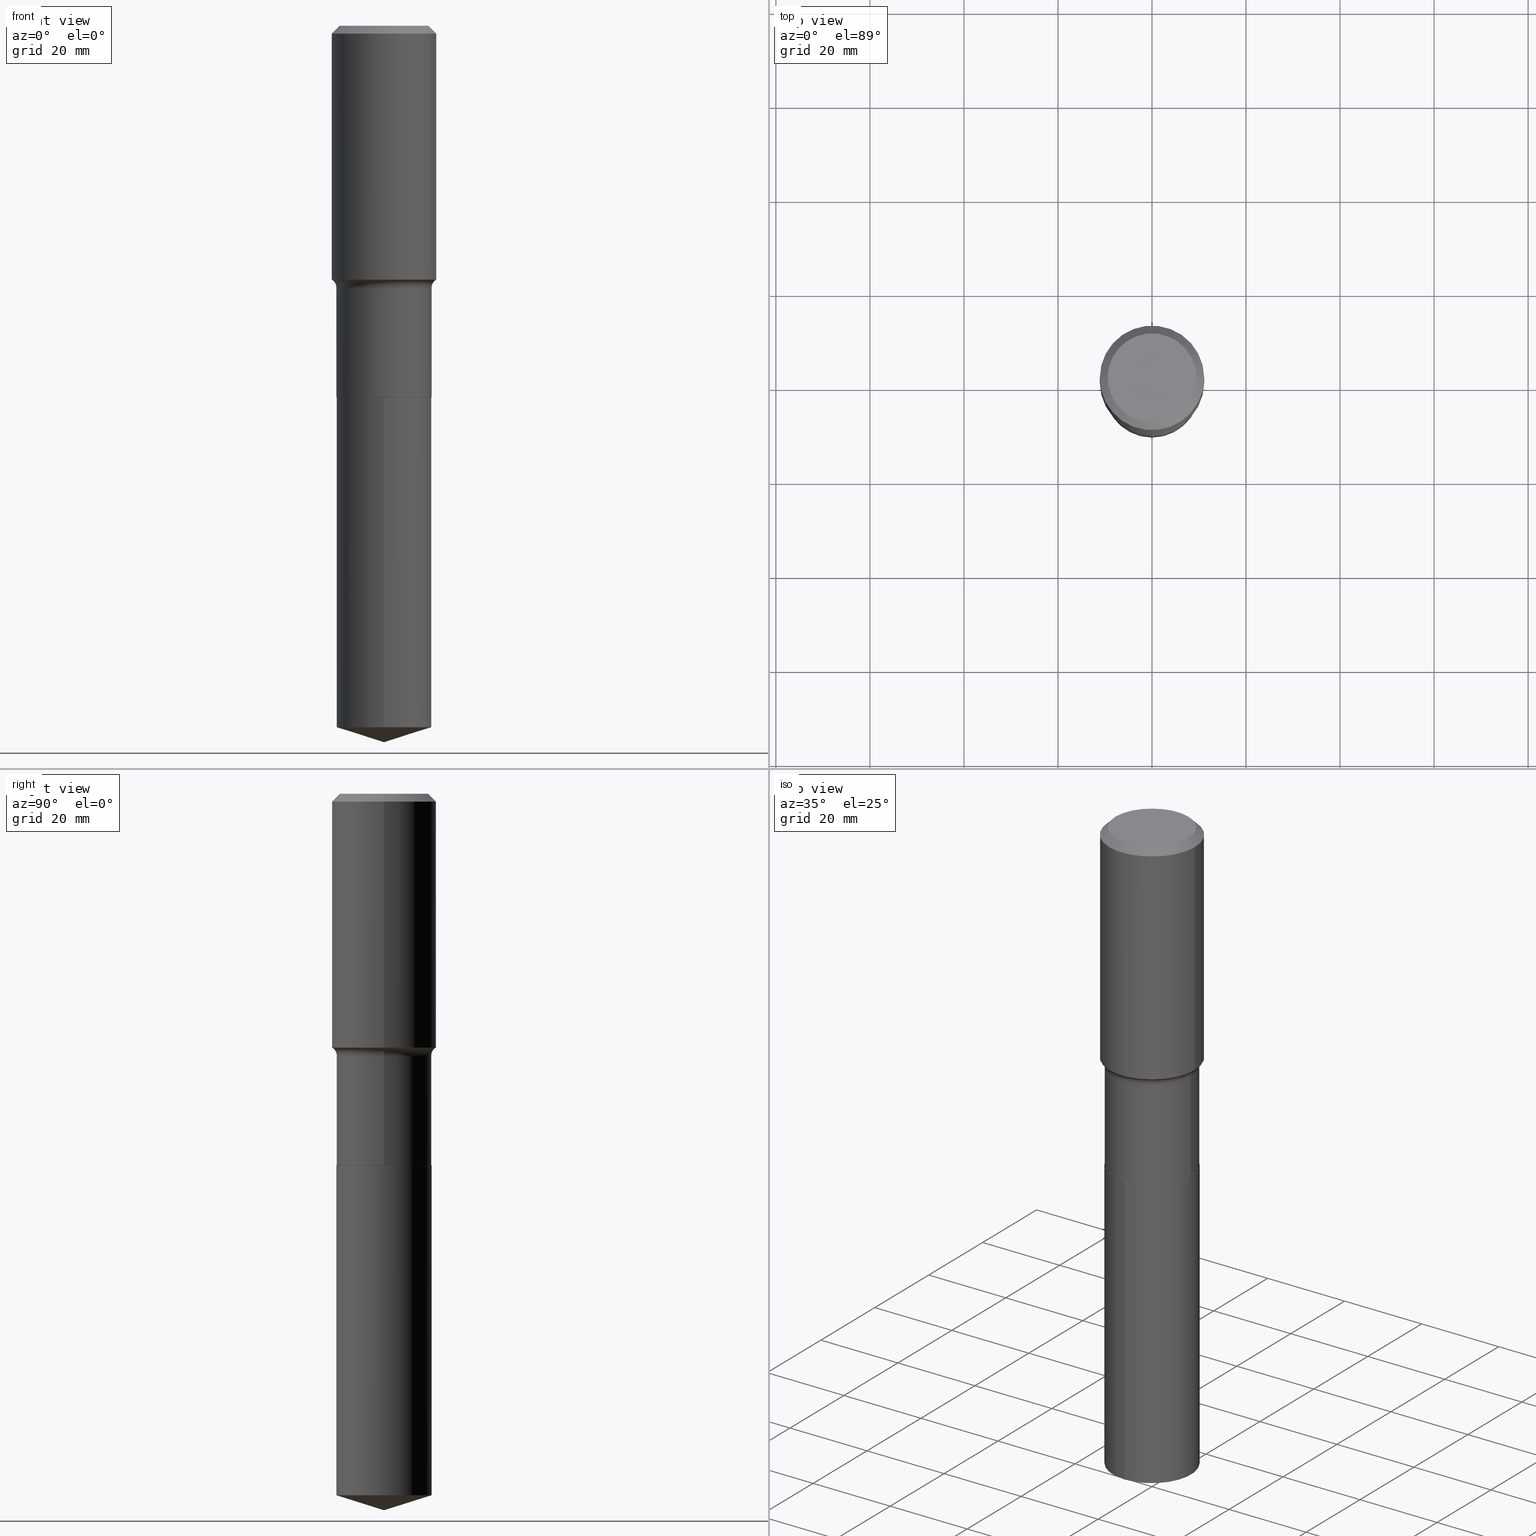
[diagram: canonical four-view strip — front | top / right | iso, engineering-drawing reading convention]
A machine part, canonical four-view strip (front | top / right | iso — engineering-drawing reading convention). The complete STEP part file that produces these views, byte-faithful:
ISO-10303-21;
HEADER;
FILE_DESCRIPTION (( 'STEP AP203' ),
    '1' );
FILE_NAME ('51792.STEP',
    '2024-04-19T13:28:52',
    ( '' ),
    ( '' ),
    'SwSTEP 2.0',
    'SolidWorks 2023',
    '' );
FILE_SCHEMA (( 'CONFIG_CONTROL_DESIGN' ));
ENDSEC;

DATA;
#1 = TOROIDAL_SURFACE ( 'NONE', #310, 0.4764499999999998181, 0.07799999999999999989 ) ;
#2 = CARTESIAN_POINT ( 'NONE',  ( 0.4375000000000001110, -3.055046171487742475E-15, 2.133327339410722330E-29 ) ) ;
#3 = EDGE_CURVE ( 'NONE', #409, #291, #72, .T. ) ;
#4 = CIRCLE ( 'NONE', #132, 0.07800000000000002764 ) ;
#5 = EDGE_CURVE ( 'NONE', #436, #105, #319, .T. ) ;
#6 = AXIS2_PLACEMENT_3D ( 'NONE', #71, #32, #452 ) ;
#7 = APPLICATION_CONTEXT ( 'configuration controlled 3d designs of mechanical parts and assemblies' ) ;
#8 = EDGE_LOOP ( 'NONE', ( #290, #220, #171, #181 ) ) ;
#9 = EDGE_CURVE ( 'NONE', #136, #129, #104, .T. ) ;
#10 = CARTESIAN_POINT ( 'NONE',  ( 1.604838904059006962E-30, -2.291284628615829930E-16, -0.06562500000000044686 ) ) ;
#11 = AXIS2_PLACEMENT_3D ( 'NONE', #135, #392, #440 ) ;
#12 = ORIENTED_EDGE ( 'NONE', *, *, #74, .T. ) ;
#13 = ORIENTED_EDGE ( 'NONE', *, *, #231, .F. ) ;
#14 = DIRECTION ( 'NONE',  ( -6.659769872151631300E-15, -0.9537169507482265995, 0.3007057995042737852 ) ) ;
#15 = ORIENTED_EDGE ( 'NONE', *, *, #188, .F. ) ;
#16 = SECURITY_CLASSIFICATION_LEVEL ( 'unclassified' ) ;
#17 = LINE ( 'NONE', #174, #468 ) ;
#18 = ORIENTED_EDGE ( 'NONE', *, *, #395, .F. ) ;
#19 = CLOSED_SHELL ( 'NONE', ( #383, #277, #211, #361, #57, #442, #465, #241, #54, #165, #385, #434 ) ) ;
#20 = COORDINATED_UNIVERSAL_TIME_OFFSET ( 5, 0, .BEHIND. ) ;
#21 = CARTESIAN_POINT ( 'NONE',  ( 0.4764499999999998181, -1.098385114386664135E-14, -2.193000000000000504 ) ) ;
#22 = PRODUCT_DEFINITION ( 'UNKNOWN', '', #85, #202 ) ;
#23 = FACE_OUTER_BOUND ( 'NONE', #130, .T. ) ;
#24 = CIRCLE ( 'NONE', #309, 0.3984499999999998598 ) ;
#25 = ORIENTED_EDGE ( 'NONE', *, *, #197, .F. ) ;
#26 = APPROVAL_DATE_TIME ( #255, #345 ) ;
#27 = DIRECTION ( 'NONE',  ( 1.000000000000000000, -6.982962677686266711E-15, 4.883557194083112901E-29 ) ) ;
#28 = DIRECTION ( 'NONE',  ( 1.000000000000000000, -6.982962677686265922E-15, 4.876176775795935793E-29 ) ) ;
#29 = ORIENTED_EDGE ( 'NONE', *, *, #296, .T. ) ;
#30 = APPROVAL_STATUS ( 'not_yet_approved' ) ;
#31 = LINE ( 'NONE', #420, #141 ) ;
#32 = DIRECTION ( 'NONE',  ( 0.000000000000000000, 0.000000000000000000, 1.000000000000000000 ) ) ;
#33 = EDGE_CURVE ( 'NONE', #143, #281, #340, .T. ) ;
#34 = CARTESIAN_POINT ( 'NONE',  ( -0.4375000000000003331, -4.312243903027238069E-15, -2.125421175653907646 ) ) ;
#35 = CARTESIAN_POINT ( 'NONE',  ( 1.436559583916348787E-28, -2.051023724085114055E-14, -5.874369197571170709 ) ) ;
#36 = MECHANICAL_CONTEXT ( 'NONE', #7, 'mechanical' ) ;
#37 = CONICAL_SURFACE ( 'NONE', #402, 0.4375000000000000000, 0.7853981633974447263 ) ;
#38 = AXIS2_PLACEMENT_3D ( 'NONE', #103, #184, #405 ) ;
#39 = CARTESIAN_POINT ( 'NONE',  ( 7.603940705952065203E-29, -1.085641207499887869E-14, -3.109400000000000386 ) ) ;
#40 = CARTESIAN_POINT ( 'NONE',  ( -8.160560813710107733E-28, 1.165108331761446839E-13, 33.37007874015748143 ) ) ;
#41 = CARTESIAN_POINT ( 'NONE',  ( 1.604838904059006962E-30, -2.291284628615829930E-16, -0.06562500000000044686 ) ) ;
#42 = PRODUCT ( '51792', '51792', '', ( #36 ) ) ;
#43 = APPROVAL ( #473, 'UNSPECIFIED' ) ;
#44 = AXIS2_PLACEMENT_3D ( 'NONE', #41, #190, #413 ) ;
#45 = CARTESIAN_POINT ( 'NONE',  ( 0.3984499999999998598, -1.043918005500711173E-14, -2.193000000000000504 ) ) ;
#46 = PERSON ( 'UNSPECIFIED', 'UNSPECIFIED', 'UNSPECIFIED', ('UNSPECIFIED'), ('UNSPECIFIED'), ('UNSPECIFIED') ) ;
#47 = ORIENTED_EDGE ( 'NONE', *, *, #207, .F. ) ;
#48 = PRODUCT_DEFINITION_SHAPE ( 'NONE', 'NONE',  #22 ) ;
#49 = DIRECTION ( 'NONE',  ( -2.445468806185136597E-29, 3.491481338843145583E-15, 1.000000000000000000 ) ) ;
#50 = CONICAL_SURFACE ( 'NONE', #390, 124.8659371009150760, 1.265363707695891682 ) ;
#51 = APPROVAL_PERSON_ORGANIZATION ( #334, #43, #68 ) ;
#52 = ORIENTED_EDGE ( 'NONE', *, *, #349, .T. ) ;
#53 = CYLINDRICAL_SURFACE ( 'NONE', #183, 0.4375000000000001110 ) ;
#54 = ADVANCED_FACE ( 'NONE', ( #23 ), #37, .T. ) ;
#55 = CARTESIAN_POINT ( 'NONE',  ( 7.602717971548972402E-29, -1.085466633432945640E-14, -3.108900000000000219 ) ) ;
#56 = ORIENTED_EDGE ( 'NONE', *, *, #328, .T. ) ;
#57 = ADVANCED_FACE ( 'NONE', ( #78 ), #308, .T. ) ;
#58 = ORIENTED_EDGE ( 'NONE', *, *, #424, .F. ) ;
#59 = DIRECTION ( 'NONE',  ( -2.445468806185136597E-29, 3.491481338843145583E-15, 1.000000000000000000 ) ) ;
#60 = VECTOR ( 'NONE', #338, 39.37007874015748143 ) ;
#61 = VECTOR ( 'NONE', #242, 39.37007874015748143 ) ;
#62 = EDGE_LOOP ( 'NONE', ( #25, #285, #476, #260 ) ) ;
#63 =( NAMED_UNIT ( * ) SI_UNIT ( $, .STERADIAN. ) SOLID_ANGLE_UNIT ( ) );
#64 = ADVANCED_FACE ( 'NONE', ( #160 ), #438, .T. ) ;
#65 = CARTESIAN_POINT ( 'NONE',  ( 5.197651185066970693E-29, -7.420868371977678749E-15, -2.125421175653907646 ) ) ;
#66 = COORDINATED_UNIVERSAL_TIME_OFFSET ( 5, 0, .BEHIND. ) ;
#67 = EDGE_LOOP ( 'NONE', ( #282, #298, #482, #187 ) ) ;
#68 = APPROVAL_ROLE ( '' ) ;
#69 = DIRECTION ( 'NONE',  ( 1.000000000000000000, -6.982962677686268288E-15, 0.000000000000000000 ) ) ;
#70 = EDGE_LOOP ( 'NONE', ( #253, #97 ) ) ;
#71 = CARTESIAN_POINT ( 'NONE',  ( 0.000000000000000000, 0.000000000000000000, 0.000000000000000000 ) ) ;
#72 = CIRCLE ( 'NONE', #243, 0.4375000000000000000 ) ;
#73 = CARTESIAN_POINT ( 'NONE',  ( -0.3979500000000000814, -8.026158030867447825E-15, -3.109400000000000386 ) ) ;
#74 = EDGE_CURVE ( 'NONE', #129, #136, #346, .T. ) ;
#75 = AXIS2_PLACEMENT_3D ( 'NONE', #123, #382, #279 ) ;
#76 = DATE_AND_TIME ( #261, #347 ) ;
#77 = CARTESIAN_POINT ( 'NONE',  ( -2.782361478924016448E-15, -0.3984500000000109066, -3.109399999999998609 ) ) ;
#78 = FACE_OUTER_BOUND ( 'NONE', #444, .T. ) ;
#79 = CC_DESIGN_PERSON_AND_ORGANIZATION_ASSIGNMENT ( #195, #118, ( #42 ) ) ;
#80 = CARTESIAN_POINT ( 'NONE',  ( -0.4375000000000000000, -7.163739484691917690E-16, -0.06562500000000044686 ) ) ;
#81 = DIRECTION ( 'NONE',  ( 2.438088387897960049E-29, -3.491481338843145188E-15, -1.000000000000000000 ) ) ;
#82 = DIRECTION ( 'NONE',  ( -2.445468806185136597E-29, 3.491481338843145583E-15, 1.000000000000000000 ) ) ;
#83 = CARTESIAN_POINT ( 'NONE',  ( 0.000000000000000000, 0.000000000000000000, 0.000000000000000000 ) ) ;
#84 = CIRCLE ( 'NONE', #487, 0.07800000000000002764 ) ;
#85 = PRODUCT_DEFINITION_FORMATION_WITH_SPECIFIED_SOURCE ( 'ANY', '', #42, .NOT_KNOWN. ) ;
#86 = PLANE ( 'NONE',  #429 ) ;
#87 = CARTESIAN_POINT ( 'NONE',  ( 7.603940705952065203E-29, -1.085641207499887869E-14, -3.109400000000000386 ) ) ;
#88 = CARTESIAN_POINT ( 'NONE',  ( -0.3984500000000001374, -6.424584924570118002E-15, -3.108900000000000219 ) ) ;
#89 = ORIENTED_EDGE ( 'NONE', *, *, #33, .T. ) ;
#90 = AXIS2_PLACEMENT_3D ( 'NONE', #83, #152, #28 ) ;
#91 = CARTESIAN_POINT ( 'NONE',  ( 5.362913091964004880E-29, -7.656818576083019153E-15, -2.193000000000000504 ) ) ;
#92 = CYLINDRICAL_SURFACE ( 'NONE', #461, 0.3984499999999999709 ) ;
#93 = AXIS2_PLACEMENT_3D ( 'NONE', #262, #108, #411 ) ;
#94 = CARTESIAN_POINT ( 'NONE',  ( 7.602717971548972402E-29, -1.085466633432945640E-14, -3.108900000000000219 ) ) ;
#95 =( GEOMETRIC_REPRESENTATION_CONTEXT ( 3 ) GLOBAL_UNCERTAINTY_ASSIGNED_CONTEXT ( ( #317 ) ) GLOBAL_UNIT_ASSIGNED_CONTEXT ( ( #401, #445, #63 ) ) REPRESENTATION_CONTEXT ( 'NONE', 'WORKASPACE' ) );
#96 = ORIENTED_EDGE ( 'NONE', *, *, #328, .F. ) ;
#97 = ORIENTED_EDGE ( 'NONE', *, *, #486, .T. ) ;
#98 = FACE_OUTER_BOUND ( 'NONE', #288, .T. ) ;
#99 = PERSON_AND_ORGANIZATION_ROLE ( 'classification_officer' ) ;
#100 = CARTESIAN_POINT ( 'NONE',  ( 2.831157530636262556E-15, 0.3984499999999795428, -5.874369197571171597 ) ) ;
#101 = ORIENTED_EDGE ( 'NONE', *, *, #9, .F. ) ;
#102 = LINE ( 'NONE', #140, #384 ) ;
#103 = CARTESIAN_POINT ( 'NONE',  ( 7.603940705952065203E-29, -1.085641207499887869E-14, -3.109400000000000386 ) ) ;
#104 = CIRCLE ( 'NONE', #38, 0.3984500000000000264 ) ;
#105 = VERTEX_POINT ( 'NONE', #414 ) ;
#106 = CC_DESIGN_PERSON_AND_ORGANIZATION_ASSIGNMENT ( #280, #147, ( #22 ) ) ;
#107 = ORIENTED_EDGE ( 'NONE', *, *, #451, .F. ) ;
#108 = DIRECTION ( 'NONE',  ( -2.445468806185136597E-29, 3.491481338843145583E-15, 1.000000000000000000 ) ) ;
#109 = EDGE_LOOP ( 'NONE', ( #464, #177, #354, #431 ) ) ;
#110 = CARTESIAN_POINT ( 'NONE',  ( 5.362913091964004880E-29, -7.656818576083019153E-15, -2.193000000000000504 ) ) ;
#111 = CARTESIAN_POINT ( 'NONE',  ( 2.831157530636262556E-15, 0.3984499999999891462, -3.109400000000002162 ) ) ;
#112 = CC_DESIGN_APPROVAL ( #43, ( #142 ) ) ;
#113 = LINE ( 'NONE', #229, #162 ) ;
#114 = PLANE ( 'NONE',  #194 ) ;
#115 = DIRECTION ( 'NONE',  ( -2.445468806185136597E-29, 3.491481338843145583E-15, 1.000000000000000000 ) ) ;
#116 = LINE ( 'NONE', #77, #254 ) ;
#117 = DIRECTION ( 'NONE',  ( -1.000000000000000000, 7.105427357601001859E-15, 0.000000000000000000 ) ) ;
#118 = PERSON_AND_ORGANIZATION_ROLE ( 'design_owner' ) ;
#119 = VECTOR ( 'NONE', #266, 39.37007874015748143 ) ;
#120 = DIRECTION ( 'NONE',  ( -6.982962677686265922E-15, -1.000000000000000000, 3.500519750498704038E-15 ) ) ;
#121 = CARTESIAN_POINT ( 'NONE',  ( 0.000000000000000000, 0.000000000000000000, 0.000000000000000000 ) ) ;
#122 = AXIS2_PLACEMENT_3D ( 'NONE', #155, #297, #27 ) ;
#123 = CARTESIAN_POINT ( 'NONE',  ( 7.603940705952065203E-29, -1.085641207499887869E-14, -3.109400000000000386 ) ) ;
#124 = AXIS2_PLACEMENT_3D ( 'NONE', #170, #426, #250 ) ;
#125 = APPROVAL_DATE_TIME ( #245, #303 ) ;
#126 = CARTESIAN_POINT ( 'NONE',  ( 0.3984499999999999709, -2.782361478924092573E-15, 1.942912636315890449E-29 ) ) ;
#127 = VERTEX_POINT ( 'NONE', #158 ) ;
#128 = EDGE_CURVE ( 'NONE', #363, #295, #201, .T. ) ;
#129 = VERTEX_POINT ( 'NONE', #271 ) ;
#130 = EDGE_LOOP ( 'NONE', ( #47, #435, #52, #407 ) ) ;
#131 = CC_DESIGN_DATE_AND_TIME_ASSIGNMENT ( #178, #396, ( #142 ) ) ;
#132 = AXIS2_PLACEMENT_3D ( 'NONE', #422, #381, #117 ) ;
#133 = LOCAL_TIME ( 9, 28, 52.00000000000000000, #478 ) ;
#134 = ORIENTED_EDGE ( 'NONE', *, *, #389, .F. ) ;
#135 = CARTESIAN_POINT ( 'NONE',  ( 7.603940705952065203E-29, -1.085641207499887869E-14, -3.109400000000000386 ) ) ;
#136 = VERTEX_POINT ( 'NONE', #111 ) ;
#137 = FACE_OUTER_BOUND ( 'NONE', #62, .T. ) ;
#138 = ADVANCED_FACE ( 'NONE', ( #417 ), #339, .T. ) ;
#139 = VERTEX_POINT ( 'NONE', #455 ) ;
#140 = CARTESIAN_POINT ( 'NONE',  ( -0.4375000000000001110, 3.108624468950439102E-15, -2.152034101986521805E-29 ) ) ;
#141 = VECTOR ( 'NONE', #341, 39.37007874015748143 ) ;
#142 = SECURITY_CLASSIFICATION ( '', '', #16 ) ;
#143 = VERTEX_POINT ( 'NONE', #264 ) ;
#144 = ORIENTED_EDGE ( 'NONE', *, *, #265, .T. ) ;
#145 = CARTESIAN_POINT ( 'NONE',  ( -2.782361478923949789E-15, -0.3984500000000205100, -5.874369197571169821 ) ) ;
#146 = ORIENTED_EDGE ( 'NONE', *, *, #74, .F. ) ;
#147 = PERSON_AND_ORGANIZATION_ROLE ( 'creator' ) ;
#148 = ORIENTED_EDGE ( 'NONE', *, *, #238, .F. ) ;
#149 = LINE ( 'NONE', #192, #278 ) ;
#150 = CLOSED_SHELL ( 'NONE', ( #489, #64, #391, #138, #415 ) ) ;
#151 = CARTESIAN_POINT ( 'NONE',  ( 7.603940705952065203E-29, -1.085641207499887869E-14, -3.109400000000000386 ) ) ;
#152 = DIRECTION ( 'NONE',  ( -2.445468806185136597E-29, 3.491481338843145583E-15, 1.000000000000000000 ) ) ;
#153 = CIRCLE ( 'NONE', #377, 0.3984499999999998598 ) ;
#154 = APPLICATION_PROTOCOL_DEFINITION ( 'international standard', 'config_control_design', 1994, #459 ) ;
#155 = CARTESIAN_POINT ( 'NONE',  ( 5.362913091964004880E-29, -7.656818576083019153E-15, -2.193000000000000504 ) ) ;
#156 = PERSON_AND_ORGANIZATION ( #46, #216 ) ;
#157 = FACE_OUTER_BOUND ( 'NONE', #67, .T. ) ;
#158 = CARTESIAN_POINT ( 'NONE',  ( -0.3984499999999998598, -6.424584924570119580E-15, -2.193000000000000504 ) ) ;
#159 = EDGE_CURVE ( 'NONE', #281, #127, #4, .T. ) ;
#160 = FACE_OUTER_BOUND ( 'NONE', #373, .T. ) ;
#161 = VECTOR ( 'NONE', #331, 39.37007874015748143 ) ;
#162 = VECTOR ( 'NONE', #423, 39.37007874015748854 ) ;
#163 = APPROVAL_PERSON_ORGANIZATION ( #156, #303, #418 ) ;
#164 = DIRECTION ( 'NONE',  ( 1.000000000000000000, -6.982962677686265922E-15, 4.876176775795935793E-29 ) ) ;
#165 = ADVANCED_FACE ( 'NONE', ( #236 ), #304, .F. ) ;
#166 = CARTESIAN_POINT ( 'NONE',  ( -1.591006383764329579E-46, 2.271535455632766759E-32, 6.505936120470313374E-18 ) ) ;
#167 = LINE ( 'NONE', #126, #234 ) ;
#168 = EDGE_LOOP ( 'NONE', ( #12, #351 ) ) ;
#169 = CONICAL_SURFACE ( 'NONE', #44, 0.4375000000000000000, 0.7853981633974447263 ) ;
#170 = CARTESIAN_POINT ( 'NONE',  ( 7.603940705952065203E-29, -1.085641207499887869E-14, -3.109400000000000386 ) ) ;
#171 = ORIENTED_EDGE ( 'NONE', *, *, #247, .T. ) ;
#172 = CALENDAR_DATE ( 2024, 19, 4 ) ;
#173 = CC_DESIGN_PERSON_AND_ORGANIZATION_ASSIGNMENT ( #301, #219, ( #85 ) ) ;
#174 = CARTESIAN_POINT ( 'NONE',  ( 0.4375000000000000000, -3.230596336886627854E-15, -0.06562500000000044686 ) ) ;
#175 = CIRCLE ( 'NONE', #239, 0.3984500000000000264 ) ;
#176 = LINE ( 'NONE', #397, #263 ) ;
#177 = ORIENTED_EDGE ( 'NONE', *, *, #424, .T. ) ;
#178 = DATE_AND_TIME ( #182, #287 ) ;
#179 = EDGE_LOOP ( 'NONE', ( #213, #439, #370, #148 ) ) ;
#180 = DIRECTION ( 'NONE',  ( -2.445468806185136597E-29, 3.491481338843145583E-15, 1.000000000000000000 ) ) ;
#181 = ORIENTED_EDGE ( 'NONE', *, *, #395, .T. ) ;
#182 = CALENDAR_DATE ( 2024, 19, 4 ) ;
#183 = AXIS2_PLACEMENT_3D ( 'NONE', #364, #404, #248 ) ;
#184 = DIRECTION ( 'NONE',  ( -2.445472137321116635E-29, 3.491476568466825474E-15, 1.000000000000000000 ) ) ;
#185 = PERSON_AND_ORGANIZATION ( #46, #216 ) ;
#186 = DIRECTION ( 'NONE',  ( -6.982962677686265133E-15, -1.000000000000000000, 2.742475084617154406E-15 ) ) ;
#187 = ORIENTED_EDGE ( 'NONE', *, *, #5, .F. ) ;
#188 = EDGE_CURVE ( 'NONE', #249, #400, #292, .T. ) ;
#189 = CALENDAR_DATE ( 2024, 19, 4 ) ;
#190 = DIRECTION ( 'NONE',  ( 2.445468806185136597E-29, -3.491481338843145583E-15, -1.000000000000000000 ) ) ;
#191 = CALENDAR_DATE ( 2024, 19, 4 ) ;
#192 = CARTESIAN_POINT ( 'NONE',  ( -0.3984499999999999709, 2.831157530636118984E-15, -1.959949686712066901E-29 ) ) ;
#193 = EDGE_CURVE ( 'NONE', #458, #105, #233, .T. ) ;
#194 = AXIS2_PLACEMENT_3D ( 'NONE', #151, #443, #335 ) ;
#195 = PERSON_AND_ORGANIZATION ( #46, #216 ) ;
#196 = DIRECTION ( 'NONE',  ( -2.445468806185136597E-29, 3.491481338843145583E-15, 1.000000000000000000 ) ) ;
#197 = EDGE_CURVE ( 'NONE', #281, #409, #102, .T. ) ;
#198 = DIRECTION ( 'NONE',  ( -2.445472137321116635E-29, 3.491476568466825474E-15, 1.000000000000000000 ) ) ;
#199 = CARTESIAN_POINT ( 'NONE',  ( 0.3979500000000000814, -1.363528207258412826E-14, -3.109400000000000386 ) ) ;
#200 = ORIENTED_EDGE ( 'NONE', *, *, #389, .T. ) ;
#201 = CIRCLE ( 'NONE', #425, 0.3718749999999999556 ) ;
#202 = DESIGN_CONTEXT ( 'detailed design', #459, 'design' ) ;
#203 = FACE_OUTER_BOUND ( 'NONE', #8, .T. ) ;
#204 = EDGE_LOOP ( 'NONE', ( #332, #244, #15 ) ) ;
#205 = DIRECTION ( 'NONE',  ( -2.445468806185136877E-29, 3.491481338843145188E-15, 1.000000000000000000 ) ) ;
#206 = CYLINDRICAL_SURFACE ( 'NONE', #124, 0.3984500000000000264 ) ;
#207 = EDGE_CURVE ( 'NONE', #295, #291, #17, .T. ) ;
#208 = ORIENTED_EDGE ( 'NONE', *, *, #276, .F. ) ;
#209 = ADVANCED_BREP_SHAPE_REPRESENTATION ( '51792', ( #230, #221, #6 ), #95 ) ;
#210 = DIRECTION ( 'NONE',  ( 2.445468806185136597E-29, -3.491481338843145583E-15, -1.000000000000000000 ) ) ;
#211 = ADVANCED_FACE ( 'NONE', ( #471 ), #53, .T. ) ;
#212 = DIRECTION ( 'NONE',  ( -2.445468806185136597E-29, 3.491481338843145583E-15, 1.000000000000000000 ) ) ;
#213 = ORIENTED_EDGE ( 'NONE', *, *, #296, .F. ) ;
#214 = AXIS2_PLACEMENT_3D ( 'NONE', #94, #325, #69 ) ;
#215 = DIRECTION ( 'NONE',  ( 1.000000000000000000, -6.982962677686268288E-15, 0.000000000000000000 ) ) ;
#216 = ORGANIZATION ( 'UNSPECIFIED', 'UNSPECIFIED', '' ) ;
#217 = DIRECTION ( 'NONE',  ( 1.000000000000000000, -6.982962677686266711E-15, 0.000000000000000000 ) ) ;
#218 = ORIENTED_EDGE ( 'NONE', *, *, #352, .T. ) ;
#219 = PERSON_AND_ORGANIZATION_ROLE ( 'design_supplier' ) ;
#220 = ORIENTED_EDGE ( 'NONE', *, *, #33, .F. ) ;
#221 = MANIFOLD_SOLID_BREP ( 'Body-Move/Copy2[2]', #19 ) ;
#222 = PERSON_AND_ORGANIZATION ( #46, #216 ) ;
#223 = CARTESIAN_POINT ( 'NONE',  ( 0.3718749999999999556, -2.890922014903958629E-15, 6.505936120489500258E-18 ) ) ;
#224 = CC_DESIGN_PERSON_AND_ORGANIZATION_ASSIGNMENT ( #185, #99, ( #142 ) ) ;
#225 = CIRCLE ( 'NONE', #430, 0.4375000000000000000 ) ;
#226 = EDGE_LOOP ( 'NONE', ( #13, #58 ) ) ;
#227 = FACE_OUTER_BOUND ( 'NONE', #252, .T. ) ;
#228 = DIRECTION ( 'NONE',  ( -6.982962677686265133E-15, -1.000000000000000000, 4.113712626925731609E-15 ) ) ;
#229 = CARTESIAN_POINT ( 'NONE',  ( 1.467283300557865982E-28, -2.094885941080095600E-14, -6.000000000000000888 ) ) ;
#230 = MANIFOLD_SOLID_BREP ( 'Body-Move/Copy2[1]', #150 ) ;
#231 = EDGE_CURVE ( 'NONE', #436, #427, #447, .T. ) ;
#232 = DIRECTION ( 'NONE',  ( -2.445472137321116635E-29, 3.491476568466825474E-15, 1.000000000000000000 ) ) ;
#233 = CIRCLE ( 'NONE', #214, 0.3984500000000000819 ) ;
#234 = VECTOR ( 'NONE', #205, 39.37007874015748143 ) ;
#235 = DIRECTION ( 'NONE',  ( 2.445472137321116355E-29, -3.491476568466825474E-15, -1.000000000000000000 ) ) ;
#236 = FACE_OUTER_BOUND ( 'NONE', #70, .T. ) ;
#237 = DATE_AND_TIME ( #191, #133 ) ;
#238 = EDGE_CURVE ( 'NONE', #127, #441, #153, .T. ) ;
#239 = AXIS2_PLACEMENT_3D ( 'NONE', #378, #374, #186 ) ;
#240 = DIRECTION ( 'NONE',  ( 1.000000000000000000, -6.982962677686266711E-15, 4.883557194083112901E-29 ) ) ;
#241 = ADVANCED_FACE ( 'NONE', ( #137 ), #289, .T. ) ;
#242 = DIRECTION ( 'NONE',  ( -2.445468806185136877E-29, 3.491481338843145188E-15, 1.000000000000000000 ) ) ;
#243 = AXIS2_PLACEMENT_3D ( 'NONE', #10, #259, #217 ) ;
#244 = ORIENTED_EDGE ( 'NONE', *, *, #276, .T. ) ;
#245 = DATE_AND_TIME ( #172, #293 ) ;
#246 = AXIS2_PLACEMENT_3D ( 'NONE', #55, #59, #215 ) ;
#247 = EDGE_CURVE ( 'NONE', #143, #441, #84, .T. ) ;
#248 = DIRECTION ( 'NONE',  ( 1.000000000000000000, -6.982962677686266711E-15, 4.876176775795935793E-29 ) ) ;
#249 = VERTEX_POINT ( 'NONE', #100 ) ;
#250 = DIRECTION ( 'NONE',  ( -6.982962677686265133E-15, -1.000000000000000000, 4.113712626925731609E-15 ) ) ;
#251 = DIRECTION ( 'NONE',  ( -2.445472137321116635E-29, 3.491476568466825474E-15, 1.000000000000000000 ) ) ;
#252 = EDGE_LOOP ( 'NONE', ( #394, #348, #469, #472 ) ) ;
#253 = ORIENTED_EDGE ( 'NONE', *, *, #128, .T. ) ;
#254 = VECTOR ( 'NONE', #479, 39.37007874015748143 ) ;
#255 = DATE_AND_TIME ( #189, #321 ) ;
#256 = CC_DESIGN_APPROVAL ( #345, ( #85 ) ) ;
#257 = CC_DESIGN_PERSON_AND_ORGANIZATION_ASSIGNMENT ( #337, #403, ( #85 ) ) ;
#258 = CARTESIAN_POINT ( 'NONE',  ( 0.4375000000000000000, -3.284174634349324876E-15, -0.06562500000000044686 ) ) ;
#259 = DIRECTION ( 'NONE',  ( -2.445468806185136597E-29, 3.491481338843145583E-15, 1.000000000000000000 ) ) ;
#260 = ORIENTED_EDGE ( 'NONE', *, *, #3, .F. ) ;
#261 = CALENDAR_DATE ( 2024, 19, 4 ) ;
#262 = CARTESIAN_POINT ( 'NONE',  ( 7.603940705952065203E-29, -1.085641207499887869E-14, -3.109400000000000386 ) ) ;
#263 = VECTOR ( 'NONE', #14, 39.37007874015748854 ) ;
#264 = CARTESIAN_POINT ( 'NONE',  ( 0.4375000000000003331, -1.047591454346542517E-14, -2.125421175653907646 ) ) ;
#265 = EDGE_CURVE ( 'NONE', #105, #458, #460, .T. ) ;
#266 = DIRECTION ( 'NONE',  ( -2.445472137321116635E-29, 3.491476568466825474E-15, 1.000000000000000000 ) ) ;
#267 = FACE_OUTER_BOUND ( 'NONE', #462, .T. ) ;
#268 = DIRECTION ( 'NONE',  ( 1.000000000000000000, -6.982962677686267499E-15, 4.876184966057910179E-29 ) ) ;
#269 = APPROVAL_STATUS ( 'not_yet_approved' ) ;
#270 = CARTESIAN_POINT ( 'NONE',  ( -0.3979500000000000814, -8.028807258041559815E-15, -3.109400000000000386 ) ) ;
#271 = CARTESIAN_POINT ( 'NONE',  ( -2.782361478924016448E-15, -0.3984500000000109066, -3.109399999999998609 ) ) ;
#272 = CIRCLE ( 'NONE', #457, 0.4375000000000002776 ) ;
#273 = APPROVAL_PERSON_ORGANIZATION ( #222, #345, #367 ) ;
#274 = APPROVAL_DATE_TIME ( #237, #43 ) ;
#275 = FACE_OUTER_BOUND ( 'NONE', #109, .T. ) ;
#276 = EDGE_CURVE ( 'NONE', #139, #400, #176, .T. ) ;
#277 = ADVANCED_FACE ( 'NONE', ( #267 ), #169, .T. ) ;
#278 = VECTOR ( 'NONE', #453, 39.37007874015748143 ) ;
#279 = DIRECTION ( 'NONE',  ( 1.000000000000000000, -6.982962677686264344E-15, 0.000000000000000000 ) ) ;
#280 = PERSON_AND_ORGANIZATION ( #46, #216 ) ;
#281 = VERTEX_POINT ( 'NONE', #34 ) ;
#282 = ORIENTED_EDGE ( 'NONE', *, *, #231, .T. ) ;
#283 = DIRECTION ( 'NONE',  ( 1.000000000000000000, -6.982962677686255667E-15, 0.000000000000000000 ) ) ;
#284 = ORIENTED_EDGE ( 'NONE', *, *, #352, .F. ) ;
#285 = ORIENTED_EDGE ( 'NONE', *, *, #393, .T. ) ;
#286 = AXIS2_PLACEMENT_3D ( 'NONE', #87, #336, #228 ) ;
#287 = LOCAL_TIME ( 9, 28, 52.00000000000000000, #475 ) ;
#288 = EDGE_LOOP ( 'NONE', ( #56, #200, #146, #284 ) ) ;
#289 = CYLINDRICAL_SURFACE ( 'NONE', #342, 0.4375000000000001110 ) ;
#290 = ORIENTED_EDGE ( 'NONE', *, *, #159, .F. ) ;
#291 = VERTEX_POINT ( 'NONE', #258 ) ;
#292 = CIRCLE ( 'NONE', #410, 0.3984500000000000264 ) ;
#293 = LOCAL_TIME ( 9, 28, 52.00000000000000000, #456 ) ;
#294 = DIRECTION ( 'NONE',  ( 0.7071067811865450192, -7.319954787623246579E-15, -0.7071067811865500152 ) ) ;
#295 = VERTEX_POINT ( 'NONE', #223 ) ;
#296 = EDGE_CURVE ( 'NONE', #458, #127, #149, .T. ) ;
#297 = DIRECTION ( 'NONE',  ( -2.445468806185136597E-29, 3.491481338843145583E-15, 1.000000000000000000 ) ) ;
#298 = ORIENTED_EDGE ( 'NONE', *, *, #333, .T. ) ;
#299 = DIRECTION ( 'NONE',  ( 1.000000000000000000, -6.982962677686264344E-15, 0.000000000000000000 ) ) ;
#300 = CARTESIAN_POINT ( 'NONE',  ( -1.591006383764329579E-46, 2.271535455632766759E-32, 6.505936120470313374E-18 ) ) ;
#301 = PERSON_AND_ORGANIZATION ( #46, #216 ) ;
#302 = FACE_OUTER_BOUND ( 'NONE', #204, .T. ) ;
#303 = APPROVAL ( #269, 'UNSPECIFIED' ) ;
#304 = PLANE ( 'NONE',  #360 ) ;
#305 = DIRECTION ( 'NONE',  ( 1.000000000000000000, -6.982962677686265133E-15, 0.000000000000000000 ) ) ;
#306 = DIRECTION ( 'NONE',  ( -6.982962677686265133E-15, -1.000000000000000000, 4.113712626925731609E-15 ) ) ;
#307 = LINE ( 'NONE', #2, #61 ) ;
#308 = CYLINDRICAL_SURFACE ( 'NONE', #90, 0.3984499999999999709 ) ;
#309 = AXIS2_PLACEMENT_3D ( 'NONE', #110, #490, #305 ) ;
#310 = AXIS2_PLACEMENT_3D ( 'NONE', #91, #350, #240 ) ;
#311 = CC_DESIGN_DATE_AND_TIME_ASSIGNMENT ( #76, #362, ( #22 ) ) ;
#312 = DIRECTION ( 'NONE',  ( 1.000000000000000000, -6.982962677686267499E-15, 4.876184966057910179E-29 ) ) ;
#313 = CARTESIAN_POINT ( 'NONE',  ( 1.604838904059006962E-30, -2.291284628615829930E-16, -0.06562500000000044686 ) ) ;
#314 = AXIS2_PLACEMENT_3D ( 'NONE', #39, #82, #299 ) ;
#315 = EDGE_LOOP ( 'NONE', ( #89, #466, #324, #398 ) ) ;
#316 = CIRCLE ( 'NONE', #379, 0.3718749999999999556 ) ;
#317 = UNCERTAINTY_MEASURE_WITH_UNIT (LENGTH_MEASURE( 1.000000000000000082E-05 ), #401, 'distance_accuracy_value', 'NONE');
#318 = DIRECTION ( 'NONE',  ( -2.445468806185136597E-29, 3.491481338843145583E-15, 1.000000000000000000 ) ) ;
#319 = LINE ( 'NONE', #326, #161 ) ;
#320 = AXIS2_PLACEMENT_3D ( 'NONE', #40, #491, #120 ) ;
#321 = LOCAL_TIME ( 9, 28, 52.00000000000000000, #20 ) ;
#322 = PRODUCT_RELATED_PRODUCT_CATEGORY ( 'detail', '', ( #42 ) ) ;
#323 = DIRECTION ( 'NONE',  ( -6.982962677686265133E-15, -1.000000000000000000, 2.742475084617154406E-15 ) ) ;
#324 = ORIENTED_EDGE ( 'NONE', *, *, #470, .F. ) ;
#325 = DIRECTION ( 'NONE',  ( -2.445468806185136597E-29, 3.491481338843145583E-15, 1.000000000000000000 ) ) ;
#326 = CARTESIAN_POINT ( 'NONE',  ( 0.3979500000000000814, -1.363528207258412826E-14, -3.109400000000000386 ) ) ;
#327 = ORIENTED_EDGE ( 'NONE', *, *, #428, .T. ) ;
#328 = EDGE_CURVE ( 'NONE', #400, #249, #175, .T. ) ;
#329 = AXIS2_PLACEMENT_3D ( 'NONE', #343, #198, #306 ) ;
#330 = DIRECTION ( 'NONE',  ( -2.445468806185136877E-29, 3.491481338843145188E-15, 1.000000000000000000 ) ) ;
#331 = DIRECTION ( 'NONE',  ( 0.7071067811864509833, -2.468850131081245741E-15, 0.7071067811866440511 ) ) ;
#332 = ORIENTED_EDGE ( 'NONE', *, *, #428, .F. ) ;
#333 = EDGE_CURVE ( 'NONE', #427, #458, #483, .T. ) ;
#334 = PERSON_AND_ORGANIZATION ( #46, #216 ) ;
#335 = DIRECTION ( 'NONE',  ( 1.000000000000000000, -6.982962677686265922E-15, 4.876176775795935793E-29 ) ) ;
#336 = DIRECTION ( 'NONE',  ( -2.445472137321116635E-29, 3.491476568466825474E-15, 1.000000000000000000 ) ) ;
#337 = PERSON_AND_ORGANIZATION ( #46, #216 ) ;
#338 = DIRECTION ( 'NONE',  ( -0.7071067811864509833, 7.493145998870005484E-15, 0.7071067811866440511 ) ) ;
#339 = CYLINDRICAL_SURFACE ( 'NONE', #329, 0.3984500000000000264 ) ;
#340 = CIRCLE ( 'NONE', #449, 0.4375000000000002776 ) ;
#341 = DIRECTION ( 'NONE',  ( -0.7071067811865450192, 2.468850131082230634E-15, -0.7071067811865500152 ) ) ;
#342 = AXIS2_PLACEMENT_3D ( 'NONE', #437, #318, #357 ) ;
#343 = CARTESIAN_POINT ( 'NONE',  ( 7.603940705952065203E-29, -1.085641207499887869E-14, -3.109400000000000386 ) ) ;
#344 = CARTESIAN_POINT ( 'NONE',  ( 2.831157530636195109E-15, 0.3984499999999891462, -3.109400000000002162 ) ) ;
#345 = APPROVAL ( #30, 'UNSPECIFIED' ) ;
#346 = CIRCLE ( 'NONE', #286, 0.3984500000000000264 ) ;
#347 = LOCAL_TIME ( 9, 28, 52.00000000000000000, #66 ) ;
#348 = ORIENTED_EDGE ( 'NONE', *, *, #159, .T. ) ;
#349 = EDGE_CURVE ( 'NONE', #363, #409, #31, .T. ) ;
#350 = DIRECTION ( 'NONE',  ( -2.445468806185136597E-29, 3.491481338843145583E-15, 1.000000000000000000 ) ) ;
#351 = ORIENTED_EDGE ( 'NONE', *, *, #9, .T. ) ;
#352 = EDGE_CURVE ( 'NONE', #400, #129, #116, .T. ) ;
#353 = DIRECTION ( 'NONE',  ( -2.445468806185136597E-29, 3.491481338843145583E-15, 1.000000000000000000 ) ) ;
#354 = ORIENTED_EDGE ( 'NONE', *, *, #5, .T. ) ;
#355 = DIRECTION ( 'NONE',  ( 1.000000000000000000, -6.982962677686266711E-15, 0.000000000000000000 ) ) ;
#356 = CC_DESIGN_APPROVAL ( #303, ( #22 ) ) ;
#357 = DIRECTION ( 'NONE',  ( 1.000000000000000000, -6.982962677686266711E-15, 4.876176775795935793E-29 ) ) ;
#358 = DIRECTION ( 'NONE',  ( -1.000000000000000000, 6.982962677686266711E-15, 0.000000000000000000 ) ) ;
#359 = ORIENTED_EDGE ( 'NONE', *, *, #470, .T. ) ;
#360 = AXIS2_PLACEMENT_3D ( 'NONE', #450, #81, #376 ) ;
#361 = ADVANCED_FACE ( 'NONE', ( #227 ), #419, .F. ) ;
#362 = DATE_TIME_ROLE ( 'creation_date' ) ;
#363 = VERTEX_POINT ( 'NONE', #485 ) ;
#364 = CARTESIAN_POINT ( 'NONE',  ( 0.000000000000000000, 0.000000000000000000, 0.000000000000000000 ) ) ;
#365 = EDGE_LOOP ( 'NONE', ( #134, #406, #218, #101 ) ) ;
#366 = LENGTH_MEASURE_WITH_UNIT ( LENGTH_MEASURE( 0.02539999999999999897 ), #492 );
#367 = APPROVAL_ROLE ( '' ) ;
#368 = DIRECTION ( 'NONE',  ( 1.000000000000000000, -6.982962677686265133E-15, 0.000000000000000000 ) ) ;
#369 = DIRECTION ( 'NONE',  ( 1.000000000000000000, -6.982962677686267499E-15, 0.000000000000000000 ) ) ;
#370 = ORIENTED_EDGE ( 'NONE', *, *, #451, .T. ) ;
#371 = CIRCLE ( 'NONE', #93, 0.3979500000000000814 ) ;
#372 = DIRECTION ( 'NONE',  ( 1.000000000000000000, -6.982962677686267499E-15, 0.000000000000000000 ) ) ;
#373 = EDGE_LOOP ( 'NONE', ( #208, #327, #96 ) ) ;
#374 = DIRECTION ( 'NONE',  ( -2.445472137321116635E-29, 3.491476568466825474E-15, 1.000000000000000000 ) ) ;
#375 = DIRECTION ( 'NONE',  ( -6.982962677686265922E-15, -1.000000000000000000, 3.500519750498704038E-15 ) ) ;
#376 = DIRECTION ( 'NONE',  ( -1.000000000000000000, 6.982962677686265922E-15, -4.876176775795935793E-29 ) ) ;
#377 = AXIS2_PLACEMENT_3D ( 'NONE', #433, #212, #368 ) ;
#378 = CARTESIAN_POINT ( 'NONE',  ( 1.436559583916348787E-28, -2.051023724085114055E-14, -5.874369197571170709 ) ) ;
#379 = AXIS2_PLACEMENT_3D ( 'NONE', #166, #49, #312 ) ;
#380 = DIRECTION ( 'NONE',  ( 6.982962677686265922E-15, 1.000000000000000000, -3.491476568466825474E-15 ) ) ;
#381 = DIRECTION ( 'NONE',  ( 7.105427357601001859E-15, 1.000000000000000000, -3.491481338843145583E-15 ) ) ;
#382 = DIRECTION ( 'NONE',  ( -2.445468806185136597E-29, 3.491481338843145583E-15, 1.000000000000000000 ) ) ;
#383 = ADVANCED_FACE ( 'NONE', ( #157 ), #399, .T. ) ;
#384 = VECTOR ( 'NONE', #330, 39.37007874015748143 ) ;
#385 = ADVANCED_FACE ( 'NONE', ( #446 ), #114, .F. ) ;
#386 = ORIENTED_EDGE ( 'NONE', *, *, #207, .T. ) ;
#387 = DIRECTION ( 'NONE',  ( -2.445468806185136597E-29, 3.491481338843145583E-15, 1.000000000000000000 ) ) ;
#388 = ORIENTED_EDGE ( 'NONE', *, *, #486, .F. ) ;
#389 = EDGE_CURVE ( 'NONE', #249, #136, #416, .T. ) ;
#390 = AXIS2_PLACEMENT_3D ( 'NONE', #448, #232, #375 ) ;
#391 = ADVANCED_FACE ( 'NONE', ( #302 ), #50, .T. ) ;
#392 = DIRECTION ( 'NONE',  ( -2.445468806185136597E-29, 3.491481338843145583E-15, 1.000000000000000000 ) ) ;
#393 = EDGE_CURVE ( 'NONE', #281, #143, #272, .T. ) ;
#394 = ORIENTED_EDGE ( 'NONE', *, *, #393, .F. ) ;
#395 = EDGE_CURVE ( 'NONE', #441, #127, #24, .T. ) ;
#396 = DATE_TIME_ROLE ( 'classification_date' ) ;
#397 = CARTESIAN_POINT ( 'NONE',  ( 1.467281210825826756E-28, -2.094888907681721413E-14, -6.000000000000000888 ) ) ;
#398 = ORIENTED_EDGE ( 'NONE', *, *, #467, .F. ) ;
#399 = CONICAL_SURFACE ( 'NONE', #314, 0.3979500000000000814, 0.7853981633973118326 ) ;
#400 = VERTEX_POINT ( 'NONE', #145 ) ;
#401 =( CONVERSION_BASED_UNIT ( 'INCH', #366 ) LENGTH_UNIT ( ) NAMED_UNIT ( #480 ) );
#402 = AXIS2_PLACEMENT_3D ( 'NONE', #481, #210, #358 ) ;
#403 = PERSON_AND_ORGANIZATION_ROLE ( 'creator' ) ;
#404 = DIRECTION ( 'NONE',  ( -2.445468806185136597E-29, 3.491481338843145583E-15, 1.000000000000000000 ) ) ;
#405 = DIRECTION ( 'NONE',  ( -6.982962677686265133E-15, -1.000000000000000000, 4.113712626925731609E-15 ) ) ;
#406 = ORIENTED_EDGE ( 'NONE', *, *, #188, .T. ) ;
#407 = ORIENTED_EDGE ( 'NONE', *, *, #3, .T. ) ;
#408 = CARTESIAN_POINT ( 'NONE',  ( 7.603940705952065203E-29, -1.085641207499887869E-14, -3.109400000000000386 ) ) ;
#409 = VERTEX_POINT ( 'NONE', #80 ) ;
#410 = AXIS2_PLACEMENT_3D ( 'NONE', #35, #251, #323 ) ;
#411 = DIRECTION ( 'NONE',  ( 1.000000000000000000, -6.982962677686264344E-15, 0.000000000000000000 ) ) ;
#412 = SHAPE_DEFINITION_REPRESENTATION ( #48, #209 ) ;
#413 = DIRECTION ( 'NONE',  ( -1.000000000000000000, 6.982962677686266711E-15, 0.000000000000000000 ) ) ;
#414 = CARTESIAN_POINT ( 'NONE',  ( 0.3984500000000000819, -1.363702781325355055E-14, -3.108900000000000219 ) ) ;
#415 = ADVANCED_FACE ( 'NONE', ( #454 ), #86, .F. ) ;
#416 = LINE ( 'NONE', #344, #119 ) ;
#417 = FACE_OUTER_BOUND ( 'NONE', #365, .T. ) ;
#418 = APPROVAL_ROLE ( '' ) ;
#419 = TOROIDAL_SURFACE ( 'NONE', #122, 0.4764499999999998181, 0.07799999999999999989 ) ;
#420 = CARTESIAN_POINT ( 'NONE',  ( -0.4375000000000000000, 2.825917708626158101E-15, -0.06562500000000044686 ) ) ;
#421 = CC_DESIGN_SECURITY_CLASSIFICATION ( #142, ( #85 ) ) ;
#422 = CARTESIAN_POINT ( 'NONE',  ( -0.4764499999999998181, -4.271437711554023899E-15, -2.193000000000000504 ) ) ;
#423 = DIRECTION ( 'NONE',  ( 6.776566513254256560E-15, 0.9537169507482287090, 0.3007057995042671794 ) ) ;
#424 = EDGE_CURVE ( 'NONE', #427, #436, #371, .T. ) ;
#425 = AXIS2_PLACEMENT_3D ( 'NONE', #300, #115, #268 ) ;
#426 = DIRECTION ( 'NONE',  ( -2.445472137321116635E-29, 3.491476568466825474E-15, 1.000000000000000000 ) ) ;
#427 = VERTEX_POINT ( 'NONE', #73 ) ;
#428 = EDGE_CURVE ( 'NONE', #139, #249, #113, .T. ) ;
#429 = AXIS2_PLACEMENT_3D ( 'NONE', #408, #235, #380 ) ;
#430 = AXIS2_PLACEMENT_3D ( 'NONE', #313, #387, #355 ) ;
#431 = ORIENTED_EDGE ( 'NONE', *, *, #193, .F. ) ;
#432 = DIRECTION ( 'NONE',  ( -6.982962677686266711E-15, -1.000000000000000000, 3.491481338843145583E-15 ) ) ;
#433 = CARTESIAN_POINT ( 'NONE',  ( 5.362913091964004880E-29, -7.656818576083019153E-15, -2.193000000000000504 ) ) ;
#434 = ADVANCED_FACE ( 'NONE', ( #275 ), #477, .T. ) ;
#435 = ORIENTED_EDGE ( 'NONE', *, *, #128, .F. ) ;
#436 = VERTEX_POINT ( 'NONE', #199 ) ;
#437 = CARTESIAN_POINT ( 'NONE',  ( 0.000000000000000000, 0.000000000000000000, 0.000000000000000000 ) ) ;
#438 = CONICAL_SURFACE ( 'NONE', #320, 124.8659371009150760, 1.265363707695891682 ) ;
#439 = ORIENTED_EDGE ( 'NONE', *, *, #193, .T. ) ;
#440 = DIRECTION ( 'NONE',  ( 1.000000000000000000, -6.982962677686264344E-15, 0.000000000000000000 ) ) ;
#441 = VERTEX_POINT ( 'NONE', #45 ) ;
#442 = ADVANCED_FACE ( 'NONE', ( #463 ), #92, .T. ) ;
#443 = DIRECTION ( 'NONE',  ( -2.438088387897960049E-29, 3.491481338843145188E-15, 1.000000000000000000 ) ) ;
#444 = EDGE_LOOP ( 'NONE', ( #144, #29, #18, #107 ) ) ;
#445 =( NAMED_UNIT ( * ) PLANE_ANGLE_UNIT ( ) SI_UNIT ( $, .RADIAN. ) );
#446 = FACE_OUTER_BOUND ( 'NONE', #226, .T. ) ;
#447 = CIRCLE ( 'NONE', #11, 0.3979500000000000814 ) ;
#448 = CARTESIAN_POINT ( 'NONE',  ( -8.160560813710107733E-28, 1.165108331761446839E-13, 33.37007874015748143 ) ) ;
#449 = AXIS2_PLACEMENT_3D ( 'NONE', #65, #180, #369 ) ;
#450 = CARTESIAN_POINT ( 'NONE',  ( -7.955031918821647895E-47, 1.135767727816383379E-32, 3.252968060235156687E-18 ) ) ;
#451 = EDGE_CURVE ( 'NONE', #105, #441, #167, .T. ) ;
#452 = DIRECTION ( 'NONE',  ( 1.000000000000000000, 0.000000000000000000, 0.000000000000000000 ) ) ;
#453 = DIRECTION ( 'NONE',  ( -2.445468806185136877E-29, 3.491481338843145188E-15, 1.000000000000000000 ) ) ;
#454 = FACE_OUTER_BOUND ( 'NONE', #168, .T. ) ;
#455 = CARTESIAN_POINT ( 'NONE',  ( 1.467283282392670093E-28, -2.094885941080095600E-14, -6.000000000000000888 ) ) ;
#456 = COORDINATED_UNIVERSAL_TIME_OFFSET ( 5, 0, .BEHIND. ) ;
#457 = AXIS2_PLACEMENT_3D ( 'NONE', #488, #196, #372 ) ;
#458 = VERTEX_POINT ( 'NONE', #88 ) ;
#459 = APPLICATION_CONTEXT ( 'configuration controlled 3d designs of mechanical parts and assemblies' ) ;
#460 = CIRCLE ( 'NONE', #246, 0.3984500000000000819 ) ;
#461 = AXIS2_PLACEMENT_3D ( 'NONE', #121, #353, #164 ) ;
#462 = EDGE_LOOP ( 'NONE', ( #388, #386, #359, #474 ) ) ;
#463 = FACE_OUTER_BOUND ( 'NONE', #179, .T. ) ;
#464 = ORIENTED_EDGE ( 'NONE', *, *, #333, .F. ) ;
#465 = ADVANCED_FACE ( 'NONE', ( #203 ), #1, .F. ) ;
#466 = ORIENTED_EDGE ( 'NONE', *, *, #197, .T. ) ;
#467 = EDGE_CURVE ( 'NONE', #143, #291, #307, .T. ) ;
#468 = VECTOR ( 'NONE', #294, 39.37007874015748143 ) ;
#469 = ORIENTED_EDGE ( 'NONE', *, *, #238, .T. ) ;
#470 = EDGE_CURVE ( 'NONE', #291, #409, #225, .T. ) ;
#471 = FACE_OUTER_BOUND ( 'NONE', #315, .T. ) ;
#472 = ORIENTED_EDGE ( 'NONE', *, *, #247, .F. ) ;
#473 = APPROVAL_STATUS ( 'not_yet_approved' ) ;
#474 = ORIENTED_EDGE ( 'NONE', *, *, #349, .F. ) ;
#475 = COORDINATED_UNIVERSAL_TIME_OFFSET ( 5, 0, .BEHIND. ) ;
#476 = ORIENTED_EDGE ( 'NONE', *, *, #467, .T. ) ;
#477 = CONICAL_SURFACE ( 'NONE', #75, 0.3979500000000000814, 0.7853981633973118326 ) ;
#478 = COORDINATED_UNIVERSAL_TIME_OFFSET ( 5, 0, .BEHIND. ) ;
#479 = DIRECTION ( 'NONE',  ( -2.445472137321116635E-29, 3.491476568466825474E-15, 1.000000000000000000 ) ) ;
#480 = DIMENSIONAL_EXPONENTS ( 1.000000000000000000, 0.000000000000000000, 0.000000000000000000, 0.000000000000000000, 0.000000000000000000, 0.000000000000000000, 0.000000000000000000 ) ;
#481 = CARTESIAN_POINT ( 'NONE',  ( 1.604838904059006962E-30, -2.291284628615829930E-16, -0.06562500000000044686 ) ) ;
#482 = ORIENTED_EDGE ( 'NONE', *, *, #265, .F. ) ;
#483 = LINE ( 'NONE', #270, #60 ) ;
#484 = APPLICATION_PROTOCOL_DEFINITION ( 'international standard', 'config_control_design', 1994, #7 ) ;
#485 = CARTESIAN_POINT ( 'NONE',  ( -0.3718749999999999556, 2.711353477195369464E-15, 6.505936120451752031E-18 ) ) ;
#486 = EDGE_CURVE ( 'NONE', #295, #363, #316, .T. ) ;
#487 = AXIS2_PLACEMENT_3D ( 'NONE', #21, #432, #283 ) ;
#488 = CARTESIAN_POINT ( 'NONE',  ( 5.197651185066970693E-29, -7.420868371977678749E-15, -2.125421175653907646 ) ) ;
#489 = ADVANCED_FACE ( 'NONE', ( #98 ), #206, .T. ) ;
#490 = DIRECTION ( 'NONE',  ( -2.445468806185136597E-29, 3.491481338843145583E-15, 1.000000000000000000 ) ) ;
#491 = DIRECTION ( 'NONE',  ( -2.445472137321116635E-29, 3.491476568466825474E-15, 1.000000000000000000 ) ) ;
#492 =( LENGTH_UNIT ( ) NAMED_UNIT ( * ) SI_UNIT ( $, .METRE. ) );
ENDSEC;
END-ISO-10303-21;
